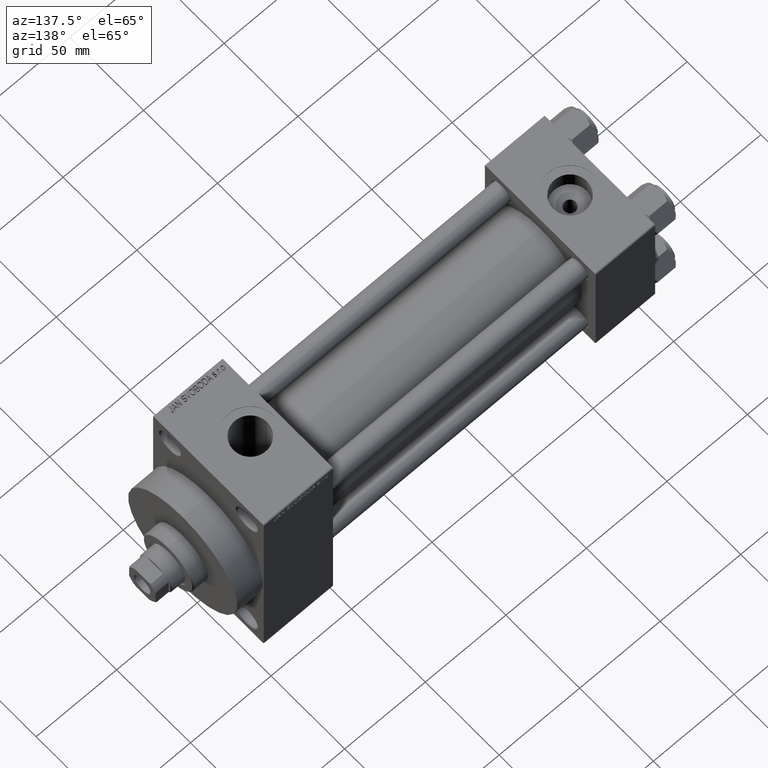
[diagram: clean part render]
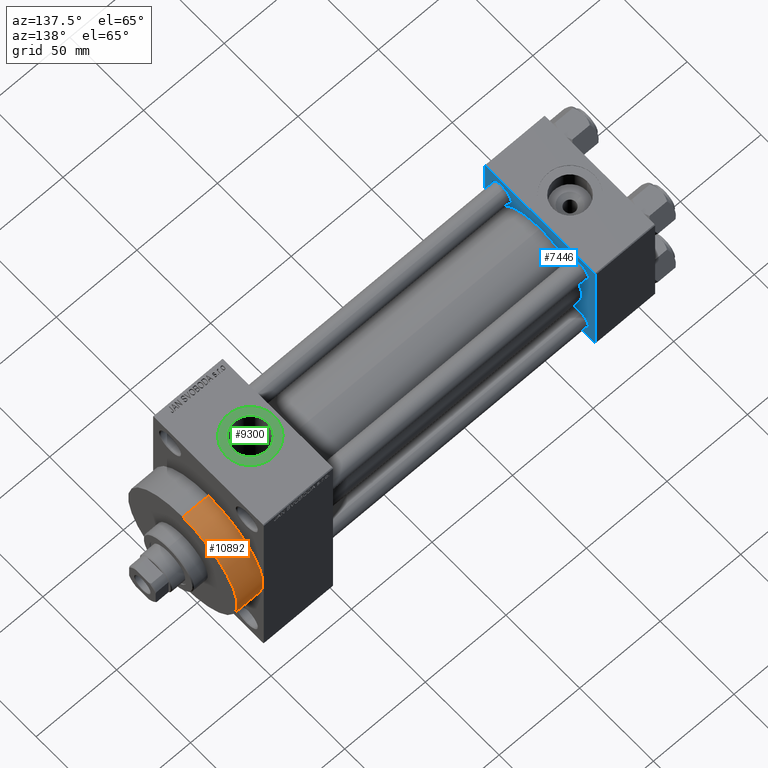
[diagram: same view with three faces highlighted in distinct colors, each labeled with its STEP entity id]
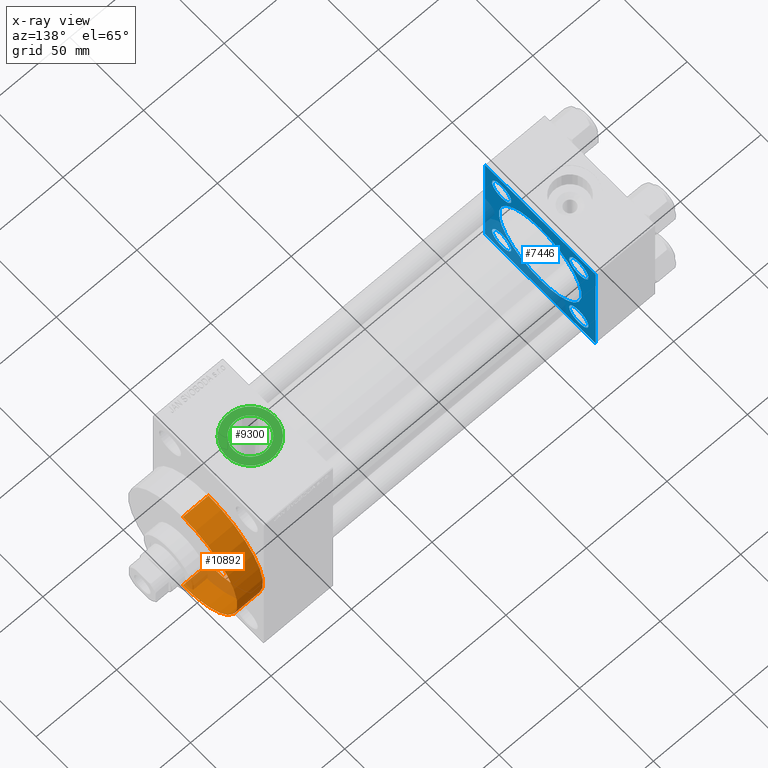
[diagram: x-ray of the same camera — body ghosted, the three highlighted faces saturated]
A machine part, auxiliary view with three faces highlighted in distinct colors.
The next image is the same camera in x-ray (body ghosted, the three faces saturated) — at least one of them is partly hidden behind the body in this view.
Their STEP definitions:

[orange] entity #10892 — the highlighted cylindrical surface (partial cylindrical patch) has radius 37 mm, axis along (-1, -0, -0).
#783 = VERTEX_POINT ( 'NONE', #33080 ) ;
#963 = CIRCLE ( 'NONE', #20000, 37.00000000000000000 ) ;
#2816 = VECTOR ( 'NONE', #9128, 1000.000000000000000 ) ;
#5725 = ORIENTED_EDGE ( 'NONE', *, *, #26025, .F. ) ;
#5730 = DIRECTION ( 'NONE',  ( 1.000000000000000000, 0.000000000000000000, 0.000000000000000000 ) ) ;
#7634 = CYLINDRICAL_SURFACE ( 'NONE', #44151, 37.00000000000000000 ) ;
#7828 = CARTESIAN_POINT ( 'NONE',  ( 243.0000000000000000, 0.000000000000000000, 0.000000000000000000 ) ) ;
#8730 = VECTOR ( 'NONE', #28647, 1000.000000000000000 ) ;
#8917 = EDGE_CURVE ( 'NONE', #783, #15103, #45911, .T. ) ;
#9128 = DIRECTION ( 'NONE',  ( -1.000000000000000000, -0.000000000000000000, -0.000000000000000000 ) ) ;
#9363 = CARTESIAN_POINT ( 'NONE',  ( 259.0000000000000000, 0.000000000000000000, 37.00000000000000000 ) ) ;
#9783 = CARTESIAN_POINT ( 'NONE',  ( 259.0000000000000000, 4.531193156845206793E-15, -37.00000000000000000 ) ) ;
#10892 = ADVANCED_FACE ( 'NONE', ( #18154 ), #7634, .T. ) ;
#12157 = ORIENTED_EDGE ( 'NONE', *, *, #8917, .F. ) ;
#13847 = LINE ( 'NONE', #9783, #8730 ) ;
#15103 = VERTEX_POINT ( 'NONE', #19847 ) ;
#15252 = DIRECTION ( 'NONE',  ( 0.000000000000000000, 0.000000000000000000, -1.000000000000000000 ) ) ;
#17858 = CARTESIAN_POINT ( 'NONE',  ( 259.0000000000000000, 4.531193156845206793E-15, -37.00000000000000000 ) ) ;
#18154 = FACE_OUTER_BOUND ( 'NONE', #37271, .T. ) ;
#19847 = CARTESIAN_POINT ( 'NONE',  ( 243.0000000000000000, 0.000000000000000000, 37.00000000000000000 ) ) ;
#20000 = AXIS2_PLACEMENT_3D ( 'NONE', #20316, #5730, #42975 ) ;
#20316 = CARTESIAN_POINT ( 'NONE',  ( 259.0000000000000000, 0.000000000000000000, 0.000000000000000000 ) ) ;
#21108 = CARTESIAN_POINT ( 'NONE',  ( 243.0000000000000000, 4.531193156845206793E-15, -37.00000000000000000 ) ) ;
#21819 = ORIENTED_EDGE ( 'NONE', *, *, #25312, .T. ) ;
#24551 = CIRCLE ( 'NONE', #45164, 37.00000000000000000 ) ;
#25312 = EDGE_CURVE ( 'NONE', #45445, #15103, #24551, .T. ) ;
#25313 = CARTESIAN_POINT ( 'NONE',  ( 259.0000000000000000, 0.000000000000000000, 0.000000000000000000 ) ) ;
#26025 = EDGE_CURVE ( 'NONE', #30252, #783, #963, .T. ) ;
#28647 = DIRECTION ( 'NONE',  ( -1.000000000000000000, -0.000000000000000000, -0.000000000000000000 ) ) ;
#29133 = DIRECTION ( 'NONE',  ( -1.000000000000000000, -0.000000000000000000, -0.000000000000000000 ) ) ;
#30252 = VERTEX_POINT ( 'NONE', #17858 ) ;
#32765 = EDGE_CURVE ( 'NONE', #30252, #45445, #13847, .T. ) ;
#33080 = CARTESIAN_POINT ( 'NONE',  ( 259.0000000000000000, 0.000000000000000000, 37.00000000000000000 ) ) ;
#33322 = ORIENTED_EDGE ( 'NONE', *, *, #32765, .T. ) ;
#33401 = DIRECTION ( 'NONE',  ( 1.000000000000000000, 0.000000000000000000, 0.000000000000000000 ) ) ;
#37271 = EDGE_LOOP ( 'NONE', ( #5725, #33322, #21819, #12157 ) ) ;
#42975 = DIRECTION ( 'NONE',  ( 0.000000000000000000, 0.000000000000000000, -1.000000000000000000 ) ) ;
#43713 = DIRECTION ( 'NONE',  ( 0.000000000000000000, 0.000000000000000000, 1.000000000000000000 ) ) ;
#44151 = AXIS2_PLACEMENT_3D ( 'NONE', #25313, #29133, #43713 ) ;
#45164 = AXIS2_PLACEMENT_3D ( 'NONE', #7828, #33401, #15252 ) ;
#45445 = VERTEX_POINT ( 'NONE', #21108 ) ;
#45911 = LINE ( 'NONE', #9363, #2816 ) ;

[blue] entity #7446 — the highlighted planar face has unit normal (-1, 0, 0).
#175 = DIRECTION ( 'NONE',  ( -0.000000000000000000, 0.7071067811865474617, 0.7071067811865474617 ) ) ;
#307 = EDGE_LOOP ( 'NONE', ( #19545, #31194 ) ) ;
#530 = CARTESIAN_POINT ( 'NONE',  ( 37.00000000000000000, -37.50000000000000000, -37.00000000000003553 ) ) ;
#600 = VERTEX_POINT ( 'NONE', #28785 ) ;
#1112 = VERTEX_POINT ( 'NONE', #41620 ) ;
#1226 = AXIS2_PLACEMENT_3D ( 'NONE', #17587, #6589, #21158 ) ;
#1417 = CARTESIAN_POINT ( 'NONE',  ( 37.00000000000000000, 37.49999999999999289, -37.50000000000000000 ) ) ;
#1569 = DIRECTION ( 'NONE',  ( 1.000000000000000000, -0.000000000000000000, 0.000000000000000000 ) ) ;
#1694 = DIRECTION ( 'NONE',  ( 1.000000000000000000, -0.000000000000000000, 0.000000000000000000 ) ) ;
#3205 = CARTESIAN_POINT ( 'NONE',  ( 37.00000000000000000, -37.00000000000002132, -37.50000000000000711 ) ) ;
#3239 = ORIENTED_EDGE ( 'NONE', *, *, #5813, .T. ) ;
#3495 = DIRECTION ( 'NONE',  ( -1.000000000000000000, 0.000000000000000000, -0.000000000000000000 ) ) ;
#3626 = CARTESIAN_POINT ( 'NONE',  ( 37.00000000000000000, -37.50000000000000711, 36.99999999999999289 ) ) ;
#4035 = CARTESIAN_POINT ( 'NONE',  ( 37.00000000000000000, -26.14999999999999147, 32.65000000000004832 ) ) ;
#4824 = EDGE_LOOP ( 'NONE', ( #6035, #46090 ) ) ;
#4984 = LINE ( 'NONE', #1417, #28917 ) ;
#5493 = DIRECTION ( 'NONE',  ( 0.000000000000000000, 0.000000000000000000, 1.000000000000000000 ) ) ;
#5813 = EDGE_CURVE ( 'NONE', #22220, #34891, #21759, .T. ) ;
#5833 = DIRECTION ( 'NONE',  ( 0.000000000000000000, 0.000000000000000000, 1.000000000000000000 ) ) ;
#5977 = EDGE_CURVE ( 'NONE', #38220, #19119, #38547, .T. ) ;
#6035 = ORIENTED_EDGE ( 'NONE', *, *, #31305, .T. ) ;
#6149 = AXIS2_PLACEMENT_3D ( 'NONE', #13587, #1694, #5493 ) ;
#6214 = CIRCLE ( 'NONE', #11564, 6.500000000000030198 ) ;
#6589 = DIRECTION ( 'NONE',  ( -1.000000000000000000, 0.000000000000000000, -0.000000000000000000 ) ) ;
#6630 = ORIENTED_EDGE ( 'NONE', *, *, #43310, .T. ) ;
#7049 = DIRECTION ( 'NONE',  ( 0.000000000000000000, 0.000000000000000000, 1.000000000000000000 ) ) ;
#7446 = ADVANCED_FACE ( 'NONE', ( #20701, #24503, #35486, #9461, #13522, #20926 ), #28315, .F. ) ;
#7755 = EDGE_CURVE ( 'NONE', #34891, #22220, #39356, .T. ) ;
#7936 = AXIS2_PLACEMENT_3D ( 'NONE', #13279, #24960, #7049 ) ;
#8072 = CARTESIAN_POINT ( 'NONE',  ( 37.00000000000000000, -26.14999999999999147, -26.15000000000000924 ) ) ;
#8156 = CARTESIAN_POINT ( 'NONE',  ( 37.00000000000000000, -37.50000000000000711, 37.49999999999999289 ) ) ;
#8703 = CARTESIAN_POINT ( 'NONE',  ( 37.00000000000000711, -2.602085213965210642E-15, 0.000000000000000000 ) ) ;
#8780 = DIRECTION ( 'NONE',  ( 0.000000000000000000, 0.000000000000000000, 1.000000000000000000 ) ) ;
#9330 = EDGE_LOOP ( 'NONE', ( #12831, #3239 ) ) ;
#9461 = FACE_BOUND ( 'NONE', #44766, .T. ) ;
#9691 = DIRECTION ( 'NONE',  ( 0.000000000000000000, 0.000000000000000000, 1.000000000000000000 ) ) ;
#9860 = CARTESIAN_POINT ( 'NONE',  ( 37.00000000000000000, 36.99999999999999289, 37.50000000000000000 ) ) ;
#10184 = VECTOR ( 'NONE', #44240, 1000.000000000000000 ) ;
#10289 = ORIENTED_EDGE ( 'NONE', *, *, #14209, .T. ) ;
#10506 = CARTESIAN_POINT ( 'NONE',  ( 37.00000000000000000, -37.00000000000002132, -37.50000000000000711 ) ) ;
#11362 = LINE ( 'NONE', #25940, #27395 ) ;
#11517 = ORIENTED_EDGE ( 'NONE', *, *, #36827, .T. ) ;
#11564 = AXIS2_PLACEMENT_3D ( 'NONE', #12893, #39387, #24109 ) ;
#12000 = DIRECTION ( 'NONE',  ( 0.000000000000000000, 0.000000000000000000, 1.000000000000000000 ) ) ;
#12373 = EDGE_LOOP ( 'NONE', ( #25270, #10289, #15744, #26187, #11517, #23890, #29418, #43812 ) ) ;
#12831 = ORIENTED_EDGE ( 'NONE', *, *, #7755, .T. ) ;
#12893 = CARTESIAN_POINT ( 'NONE',  ( 37.00000000000000000, 26.14999999999999858, 26.15000000000000213 ) ) ;
#13279 = CARTESIAN_POINT ( 'NONE',  ( 37.00000000000000000, -26.14999999999999147, -26.15000000000000924 ) ) ;
#13522 = FACE_BOUND ( 'NONE', #307, .T. ) ;
#13587 = CARTESIAN_POINT ( 'NONE',  ( 37.00000000000000711, -2.602085213965210642E-15, 0.000000000000000000 ) ) ;
#13895 = VERTEX_POINT ( 'NONE', #530 ) ;
#14043 = VECTOR ( 'NONE', #24901, 1000.000000000000114 ) ;
#14209 = EDGE_CURVE ( 'NONE', #31588, #23182, #11362, .T. ) ;
#14234 = CARTESIAN_POINT ( 'NONE',  ( 37.00000000000000000, 26.14999999999999858, -26.15000000000000213 ) ) ;
#14634 = CIRCLE ( 'NONE', #20743, 6.500000000000030198 ) ;
#15571 = EDGE_CURVE ( 'NONE', #31588, #44887, #4984, .T. ) ;
#15609 = LINE ( 'NONE', #22781, #17935 ) ;
#15744 = ORIENTED_EDGE ( 'NONE', *, *, #38332, .F. ) ;
#15804 = LINE ( 'NONE', #8156, #10184 ) ;
#15853 = EDGE_CURVE ( 'NONE', #600, #28295, #41141, .T. ) ;
#16156 = AXIS2_PLACEMENT_3D ( 'NONE', #16301, #19409, #12000 ) ;
#16301 = CARTESIAN_POINT ( 'NONE',  ( 37.00000000000000000, -26.14999999999999147, 26.15000000000000924 ) ) ;
#16807 = VECTOR ( 'NONE', #36366, 1000.000000000000114 ) ;
#16835 = CIRCLE ( 'NONE', #6149, 28.00000000000000000 ) ;
#17093 = CARTESIAN_POINT ( 'NONE',  ( 37.00000000000000000, -26.14999999999999147, 19.64999999999997371 ) ) ;
#17291 = DIRECTION ( 'NONE',  ( -1.000000000000000000, 0.000000000000000000, -0.000000000000000000 ) ) ;
#17428 = VERTEX_POINT ( 'NONE', #25354 ) ;
#17587 = CARTESIAN_POINT ( 'NONE',  ( 37.00000000000000000, 0.000000000000000000, 0.000000000000000000 ) ) ;
#17679 = CIRCLE ( 'NONE', #16156, 6.500000000000037303 ) ;
#17935 = VECTOR ( 'NONE', #25878, 1000.000000000000000 ) ;
#18655 = EDGE_CURVE ( 'NONE', #23392, #25923, #28485, .T. ) ;
#19119 = VERTEX_POINT ( 'NONE', #26452 ) ;
#19409 = DIRECTION ( 'NONE',  ( -1.000000000000000000, 0.000000000000000000, -0.000000000000000000 ) ) ;
#19506 = EDGE_CURVE ( 'NONE', #13895, #44887, #35906, .T. ) ;
#19545 = ORIENTED_EDGE ( 'NONE', *, *, #5977, .F. ) ;
#19821 = CARTESIAN_POINT ( 'NONE',  ( 37.00000000000000000, 26.14999999999999858, 19.64999999999997016 ) ) ;
#19858 = EDGE_CURVE ( 'NONE', #19119, #38220, #16835, .T. ) ;
#20701 = FACE_BOUND ( 'NONE', #4824, .T. ) ;
#20743 = AXIS2_PLACEMENT_3D ( 'NONE', #8072, #26461, #8780 ) ;
#20843 = DIRECTION ( 'NONE',  ( -1.000000000000000000, 0.000000000000000000, -0.000000000000000000 ) ) ;
#20917 = CARTESIAN_POINT ( 'NONE',  ( 37.00000000000000000, -26.14999999999999147, 26.15000000000000924 ) ) ;
#20926 = FACE_OUTER_BOUND ( 'NONE', #12373, .T. ) ;
#21158 = DIRECTION ( 'NONE',  ( -0.000000000000000000, 0.000000000000000000, 1.000000000000000000 ) ) ;
#21759 = CIRCLE ( 'NONE', #26323, 6.500000000000030198 ) ;
#22220 = VERTEX_POINT ( 'NONE', #22666 ) ;
#22666 = CARTESIAN_POINT ( 'NONE',  ( 37.00000000000000000, 26.14999999999999858, -19.64999999999997371 ) ) ;
#22734 = VERTEX_POINT ( 'NONE', #47081 ) ;
#22781 = CARTESIAN_POINT ( 'NONE',  ( 37.00000000000000000, 37.49999999999999289, 37.50000000000000000 ) ) ;
#22842 = AXIS2_PLACEMENT_3D ( 'NONE', #23323, #20843, #41240 ) ;
#23182 = VERTEX_POINT ( 'NONE', #27186 ) ;
#23323 = CARTESIAN_POINT ( 'NONE',  ( 37.00000000000000000, 26.14999999999999858, 26.15000000000000213 ) ) ;
#23392 = VERTEX_POINT ( 'NONE', #33358 ) ;
#23890 = ORIENTED_EDGE ( 'NONE', *, *, #18655, .T. ) ;
#24109 = DIRECTION ( 'NONE',  ( 0.000000000000000000, 0.000000000000000000, 1.000000000000000000 ) ) ;
#24503 = FACE_BOUND ( 'NONE', #9330, .T. ) ;
#24729 = EDGE_CURVE ( 'NONE', #42717, #29104, #17679, .T. ) ;
#24901 = DIRECTION ( 'NONE',  ( 0.000000000000000000, -0.7071067811865474617, 0.7071067811865474617 ) ) ;
#24960 = DIRECTION ( 'NONE',  ( -1.000000000000000000, 0.000000000000000000, -0.000000000000000000 ) ) ;
#25126 = EDGE_CURVE ( 'NONE', #28295, #600, #6214, .T. ) ;
#25270 = ORIENTED_EDGE ( 'NONE', *, *, #15571, .F. ) ;
#25354 = CARTESIAN_POINT ( 'NONE',  ( 37.00000000000000000, -26.14999999999999147, -19.64999999999998082 ) ) ;
#25364 = EDGE_CURVE ( 'NONE', #17428, #1112, #14634, .T. ) ;
#25444 = DIRECTION ( 'NONE',  ( 0.000000000000000000, 0.000000000000000000, 1.000000000000000000 ) ) ;
#25878 = DIRECTION ( 'NONE',  ( 0.000000000000000000, -1.000000000000000000, -9.251858538542971581E-17 ) ) ;
#25923 = VERTEX_POINT ( 'NONE', #3626 ) ;
#25940 = CARTESIAN_POINT ( 'NONE',  ( 37.00000000000000000, 37.49999999999999289, -36.99999999999998579 ) ) ;
#26187 = ORIENTED_EDGE ( 'NONE', *, *, #31586, .T. ) ;
#26323 = AXIS2_PLACEMENT_3D ( 'NONE', #14234, #3495, #25444 ) ;
#26452 = CARTESIAN_POINT ( 'NONE',  ( 37.00000000000000711, 8.269258236473784371E-16, -28.00000000000000000 ) ) ;
#26461 = DIRECTION ( 'NONE',  ( -1.000000000000000000, 0.000000000000000000, -0.000000000000000000 ) ) ;
#27186 = CARTESIAN_POINT ( 'NONE',  ( 37.00000000000000000, 37.49999999999999289, -36.99999999999998579 ) ) ;
#27395 = VECTOR ( 'NONE', #175, 1000.000000000000114 ) ;
#28012 = LINE ( 'NONE', #9860, #14043 ) ;
#28295 = VERTEX_POINT ( 'NONE', #19821 ) ;
#28315 = PLANE ( 'NONE',  #1226 ) ;
#28485 = LINE ( 'NONE', #43305, #16807 ) ;
#28785 = CARTESIAN_POINT ( 'NONE',  ( 37.00000000000000000, 26.14999999999999858, 32.65000000000004121 ) ) ;
#28917 = VECTOR ( 'NONE', #30535, 1000.000000000000000 ) ;
#29104 = VERTEX_POINT ( 'NONE', #4035 ) ;
#29145 = CARTESIAN_POINT ( 'NONE',  ( 37.00000000000000000, 26.14999999999999858, -32.65000000000003411 ) ) ;
#29418 = ORIENTED_EDGE ( 'NONE', *, *, #29802, .T. ) ;
#29802 = EDGE_CURVE ( 'NONE', #25923, #13895, #15804, .T. ) ;
#30535 = DIRECTION ( 'NONE',  ( 0.000000000000000000, -1.000000000000000000, -9.251858538542972814E-17 ) ) ;
#31194 = ORIENTED_EDGE ( 'NONE', *, *, #19858, .F. ) ;
#31294 = CARTESIAN_POINT ( 'NONE',  ( 37.00000000000000000, 37.49999999999999289, 37.00000000000000000 ) ) ;
#31305 = EDGE_CURVE ( 'NONE', #1112, #17428, #35385, .T. ) ;
#31586 = EDGE_CURVE ( 'NONE', #41328, #22734, #28012, .T. ) ;
#31588 = VERTEX_POINT ( 'NONE', #42367 ) ;
#31682 = AXIS2_PLACEMENT_3D ( 'NONE', #8703, #1569, #45955 ) ;
#32255 = CARTESIAN_POINT ( 'NONE',  ( 37.00000000000000000, 37.49999999999999289, 37.50000000000000000 ) ) ;
#33358 = CARTESIAN_POINT ( 'NONE',  ( 37.00000000000000000, -37.00000000000000711, 37.49999999999999289 ) ) ;
#34029 = VECTOR ( 'NONE', #46810, 1000.000000000000000 ) ;
#34785 = AXIS2_PLACEMENT_3D ( 'NONE', #41917, #17291, #5833 ) ;
#34891 = VERTEX_POINT ( 'NONE', #29145 ) ;
#35385 = CIRCLE ( 'NONE', #7936, 6.500000000000030198 ) ;
#35486 = FACE_BOUND ( 'NONE', #44828, .T. ) ;
#35906 = LINE ( 'NONE', #3205, #36663 ) ;
#36366 = DIRECTION ( 'NONE',  ( -0.000000000000000000, -0.7071067811865474617, -0.7071067811865474617 ) ) ;
#36663 = VECTOR ( 'NONE', #46888, 1000.000000000000000 ) ;
#36827 = EDGE_CURVE ( 'NONE', #22734, #23392, #15609, .T. ) ;
#37253 = AXIS2_PLACEMENT_3D ( 'NONE', #20917, #42427, #9691 ) ;
#37725 = ORIENTED_EDGE ( 'NONE', *, *, #15853, .T. ) ;
#37949 = ORIENTED_EDGE ( 'NONE', *, *, #24729, .T. ) ;
#38220 = VERTEX_POINT ( 'NONE', #43482 ) ;
#38332 = EDGE_CURVE ( 'NONE', #41328, #23182, #43005, .T. ) ;
#38547 = CIRCLE ( 'NONE', #31682, 28.00000000000000000 ) ;
#39019 = ORIENTED_EDGE ( 'NONE', *, *, #25126, .T. ) ;
#39356 = CIRCLE ( 'NONE', #34785, 6.500000000000030198 ) ;
#39387 = DIRECTION ( 'NONE',  ( -1.000000000000000000, 0.000000000000000000, -0.000000000000000000 ) ) ;
#41141 = CIRCLE ( 'NONE', #22842, 6.500000000000030198 ) ;
#41240 = DIRECTION ( 'NONE',  ( 0.000000000000000000, 0.000000000000000000, 1.000000000000000000 ) ) ;
#41328 = VERTEX_POINT ( 'NONE', #31294 ) ;
#41620 = CARTESIAN_POINT ( 'NONE',  ( 37.00000000000000000, -26.14999999999999147, -32.65000000000004121 ) ) ;
#41838 = CIRCLE ( 'NONE', #37253, 6.500000000000037303 ) ;
#41917 = CARTESIAN_POINT ( 'NONE',  ( 37.00000000000000000, 26.14999999999999858, -26.15000000000000213 ) ) ;
#42367 = CARTESIAN_POINT ( 'NONE',  ( 37.00000000000000000, 36.99999999999997868, -37.50000000000000000 ) ) ;
#42427 = DIRECTION ( 'NONE',  ( -1.000000000000000000, 0.000000000000000000, -0.000000000000000000 ) ) ;
#42717 = VERTEX_POINT ( 'NONE', #17093 ) ;
#43005 = LINE ( 'NONE', #32255, #34029 ) ;
#43305 = CARTESIAN_POINT ( 'NONE',  ( 37.00000000000000000, -37.50000000000000711, 36.99999999999999289 ) ) ;
#43310 = EDGE_CURVE ( 'NONE', #29104, #42717, #41838, .T. ) ;
#43482 = CARTESIAN_POINT ( 'NONE',  ( 37.00000000000000711, -2.602085213965210642E-15, 28.00000000000000000 ) ) ;
#43812 = ORIENTED_EDGE ( 'NONE', *, *, #19506, .T. ) ;
#44240 = DIRECTION ( 'NONE',  ( 0.000000000000000000, 9.251858538542971581E-17, -1.000000000000000000 ) ) ;
#44766 = EDGE_LOOP ( 'NONE', ( #39019, #37725 ) ) ;
#44828 = EDGE_LOOP ( 'NONE', ( #37949, #6630 ) ) ;
#44887 = VERTEX_POINT ( 'NONE', #10506 ) ;
#45955 = DIRECTION ( 'NONE',  ( 0.000000000000000000, 0.000000000000000000, 1.000000000000000000 ) ) ;
#46090 = ORIENTED_EDGE ( 'NONE', *, *, #25364, .T. ) ;
#46810 = DIRECTION ( 'NONE',  ( 0.000000000000000000, 0.000000000000000000, -1.000000000000000000 ) ) ;
#46888 = DIRECTION ( 'NONE',  ( 0.000000000000000000, 0.7071067811865524577, -0.7071067811865426878 ) ) ;
#47081 = CARTESIAN_POINT ( 'NONE',  ( 37.00000000000000000, 36.99999999999999289, 37.50000000000000000 ) ) ;

[green] entity #9300 — the highlighted planar face has unit normal (0, 0, 1).
#870 = DIRECTION ( 'NONE',  ( 0.000000000000000000, 0.000000000000000000, 1.000000000000000000 ) ) ;
#1027 = VERTEX_POINT ( 'NONE', #7930 ) ;
#1322 = AXIS2_PLACEMENT_3D ( 'NONE', #36886, #22094, #4178 ) ;
#1671 = AXIS2_PLACEMENT_3D ( 'NONE', #33088, #870, #43849 ) ;
#1929 = CARTESIAN_POINT ( 'NONE',  ( 217.0000000000000284, -1.184237892933500047E-14, 63.79999999999996874 ) ) ;
#2624 = PLANE ( 'NONE',  #12736 ) ;
#4054 = VERTEX_POINT ( 'NONE', #46973 ) ;
#4178 = DIRECTION ( 'NONE',  ( 1.000000000000000000, 0.000000000000000000, 0.000000000000000000 ) ) ;
#4236 = ORIENTED_EDGE ( 'NONE', *, *, #24368, .T. ) ;
#4262 = VERTEX_POINT ( 'NONE', #29532 ) ;
#5537 = DIRECTION ( 'NONE',  ( 1.000000000000000000, 0.000000000000000000, 0.000000000000000000 ) ) ;
#7930 = CARTESIAN_POINT ( 'NONE',  ( 232.0000000000000284, -1.184237892933500047E-14, 63.79999999999996874 ) ) ;
#9300 = ADVANCED_FACE ( 'NONE', ( #42506, #45384 ), #2624, .T. ) ;
#9997 = DIRECTION ( 'NONE',  ( 1.000000000000000000, 0.000000000000000000, -0.000000000000000000 ) ) ;
#10423 = EDGE_CURVE ( 'NONE', #4262, #14952, #21903, .T. ) ;
#12736 = AXIS2_PLACEMENT_3D ( 'NONE', #1929, #28154, #9997 ) ;
#13854 = CIRCLE ( 'NONE', #39773, 15.00000000000001421 ) ;
#14952 = VERTEX_POINT ( 'NONE', #17727 ) ;
#16041 = EDGE_LOOP ( 'NONE', ( #4236, #16072 ) ) ;
#16072 = ORIENTED_EDGE ( 'NONE', *, *, #24092, .T. ) ;
#16085 = EDGE_LOOP ( 'NONE', ( #23570, #26372 ) ) ;
#16762 = CARTESIAN_POINT ( 'NONE',  ( 217.0000000000000284, -1.184237892933500047E-14, 63.79999999999996874 ) ) ;
#17727 = CARTESIAN_POINT ( 'NONE',  ( 227.4800000000000182, -1.055894908382857656E-14, 63.79999999999996874 ) ) ;
#18081 = DIRECTION ( 'NONE',  ( 1.000000000000000000, 0.000000000000000000, 0.000000000000000000 ) ) ;
#18425 = CIRCLE ( 'NONE', #1671, 15.00000000000001421 ) ;
#19088 = AXIS2_PLACEMENT_3D ( 'NONE', #25707, #25470, #18081 ) ;
#21148 = EDGE_CURVE ( 'NONE', #14952, #4262, #33573, .T. ) ;
#21903 = CIRCLE ( 'NONE', #1322, 10.47999999999998977 ) ;
#22094 = DIRECTION ( 'NONE',  ( -0.000000000000000000, -0.000000000000000000, -1.000000000000000000 ) ) ;
#23570 = ORIENTED_EDGE ( 'NONE', *, *, #10423, .T. ) ;
#24092 = EDGE_CURVE ( 'NONE', #4054, #1027, #13854, .T. ) ;
#24368 = EDGE_CURVE ( 'NONE', #1027, #4054, #18425, .T. ) ;
#25470 = DIRECTION ( 'NONE',  ( -0.000000000000000000, -0.000000000000000000, -1.000000000000000000 ) ) ;
#25707 = CARTESIAN_POINT ( 'NONE',  ( 217.0000000000000284, -1.184237892933500047E-14, 63.79999999999996874 ) ) ;
#26372 = ORIENTED_EDGE ( 'NONE', *, *, #21148, .T. ) ;
#27961 = DIRECTION ( 'NONE',  ( 0.000000000000000000, 0.000000000000000000, 1.000000000000000000 ) ) ;
#28154 = DIRECTION ( 'NONE',  ( 0.000000000000000000, 0.000000000000000000, 1.000000000000000000 ) ) ;
#29532 = CARTESIAN_POINT ( 'NONE',  ( 206.5200000000000387, -1.184237892933500047E-14, 63.79999999999996874 ) ) ;
#33088 = CARTESIAN_POINT ( 'NONE',  ( 217.0000000000000284, -1.184237892933500047E-14, 63.79999999999996874 ) ) ;
#33573 = CIRCLE ( 'NONE', #19088, 10.47999999999998977 ) ;
#36886 = CARTESIAN_POINT ( 'NONE',  ( 217.0000000000000284, -1.184237892933500047E-14, 63.79999999999996874 ) ) ;
#39773 = AXIS2_PLACEMENT_3D ( 'NONE', #16762, #27961, #5537 ) ;
#42506 = FACE_BOUND ( 'NONE', #16085, .T. ) ;
#43849 = DIRECTION ( 'NONE',  ( 1.000000000000000000, 0.000000000000000000, 0.000000000000000000 ) ) ;
#45384 = FACE_OUTER_BOUND ( 'NONE', #16041, .T. ) ;
#46973 = CARTESIAN_POINT ( 'NONE',  ( 202.0000000000000000, -1.000540873061396536E-14, 63.79999999999996874 ) ) ;